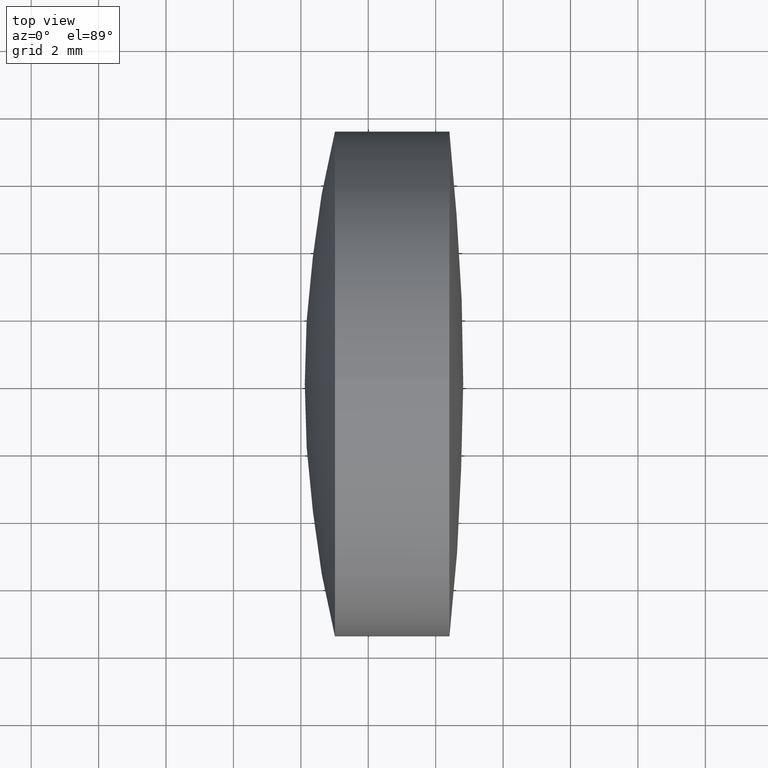
[diagram: clean part render]
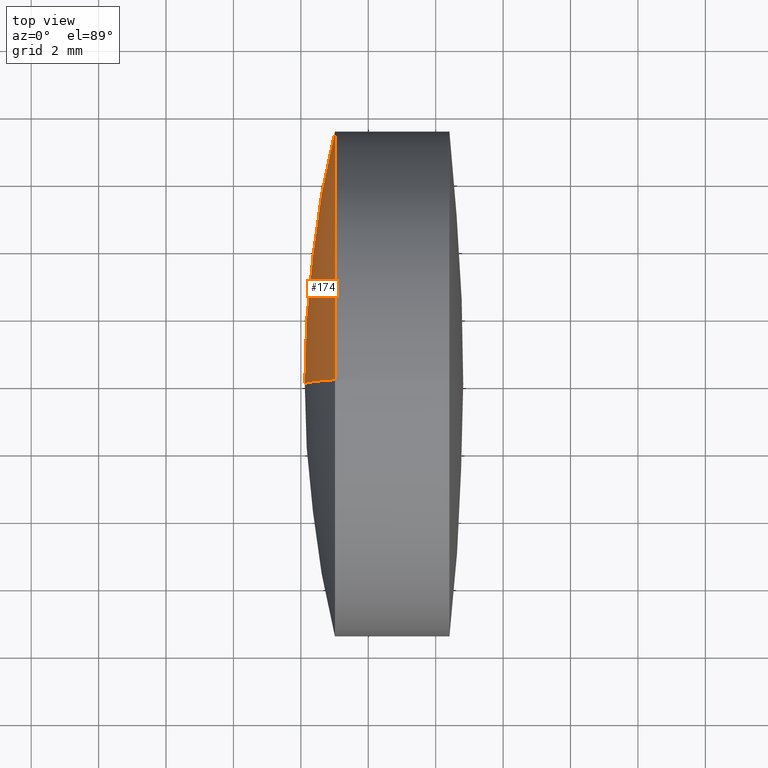
[diagram: same view with one face highlighted and labeled with its STEP entity id]
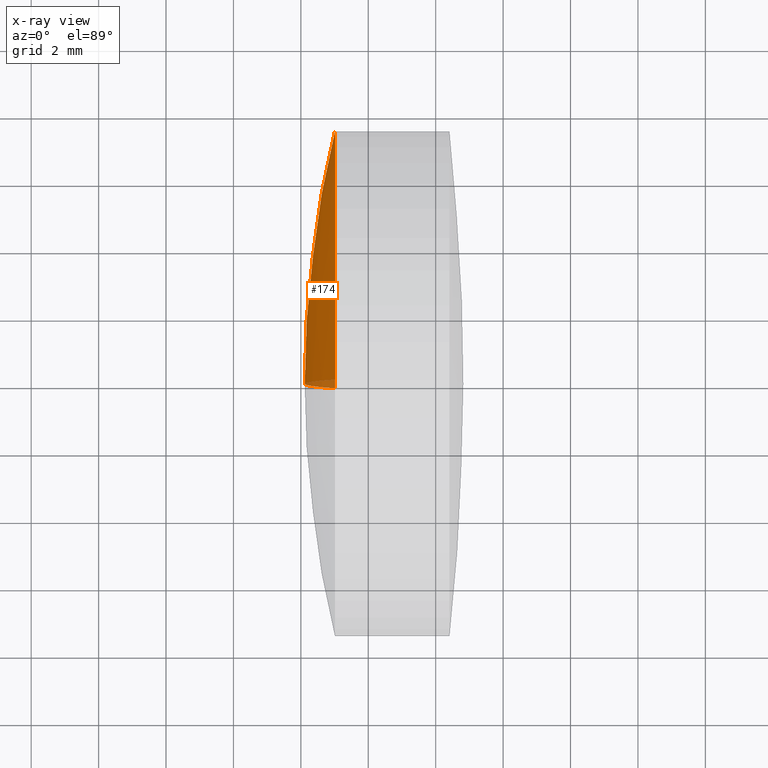
[diagram: x-ray of the same camera — body ghosted, the highlighted face saturated]
A machine part, top view. The second image highlights one B-rep face of the part: STEP entity #174.
The next image is the same camera in x-ray: the body ghosted, the highlighted face saturated — about 3% of this face is hidden behind the body in this view.
In plain terms, the highlighted spherical surface has radius 31.888 mm.
Its self-contained STEP definition (entity closure, byte-faithful):
#6 = CARTESIAN_POINT ( 'NONE',  ( 13.01076923225601200, 0.0000000000000000000, -7.500000000000007100 ) ) ;
#8 = CARTESIAN_POINT ( 'NONE',  ( 44.00422892942437900, 0.0000000000000000000, 2.710505431212750000E-017 ) ) ;
#16 = DIRECTION ( 'NONE',  ( -1.000000000000000000, -0.0000000000000000000, -0.0000000000000000000 ) ) ;
#18 = EDGE_CURVE ( 'NONE', #159, #134, #24, .T. ) ;
#24 = CIRCLE ( 'NONE', #295, 7.500000000000000000 ) ;
#27 = AXIS2_PLACEMENT_3D ( 'NONE', #320, #286, #225 ) ;
#36 = EDGE_CURVE ( 'NONE', #134, #109, #296, .T. ) ;
#39 = DIRECTION ( 'NONE',  ( 0.0000000000000000000, -1.000000000000000000, -1.224646799147353200E-016 ) ) ;
#56 = ORIENTED_EDGE ( 'NONE', *, *, #36, .T. ) ;
#92 = DIRECTION ( 'NONE',  ( -0.0000000000000000000, -1.000000000000000000, -0.0000000000000000000 ) ) ;
#94 = CARTESIAN_POINT ( 'NONE',  ( 13.01076923225601300, 0.0000000000000000000, 0.0000000000000000000 ) ) ;
#106 = EDGE_LOOP ( 'NONE', ( #128, #147, #56 ) ) ;
#109 = VERTEX_POINT ( 'NONE', #167 ) ;
#128 = ORIENTED_EDGE ( 'NONE', *, *, #226, .F. ) ;
#131 = CIRCLE ( 'NONE', #264, 31.88799999999999800 ) ;
#134 = VERTEX_POINT ( 'NONE', #6 ) ;
#142 = CARTESIAN_POINT ( 'NONE',  ( 13.01076923225601200, -9.184850993605155800E-016, 7.500000000000007100 ) ) ;
#147 = ORIENTED_EDGE ( 'NONE', *, *, #18, .T. ) ;
#159 = VERTEX_POINT ( 'NONE', #142 ) ;
#167 = CARTESIAN_POINT ( 'NONE',  ( 12.11622892942437700, 0.0000000000000000000, -1.925471802248412300E-015 ) ) ;
#174 = ADVANCED_FACE ( 'NONE', ( #209 ), #310, .T. ) ;
#209 = FACE_OUTER_BOUND ( 'NONE', #106, .T. ) ;
#225 = DIRECTION ( 'NONE',  ( 0.0000000000000000000, 0.0000000000000000000, 1.000000000000000000 ) ) ;
#226 = EDGE_CURVE ( 'NONE', #159, #109, #131, .T. ) ;
#233 = DIRECTION ( 'NONE',  ( 0.0000000000000000000, 0.0000000000000000000, 1.000000000000000000 ) ) ;
#239 = AXIS2_PLACEMENT_3D ( 'NONE', #327, #92, #302 ) ;
#264 = AXIS2_PLACEMENT_3D ( 'NONE', #8, #39, #338 ) ;
#286 = DIRECTION ( 'NONE',  ( 0.0000000000000000000, 1.000000000000000000, -0.0000000000000000000 ) ) ;
#295 = AXIS2_PLACEMENT_3D ( 'NONE', #94, #16, #233 ) ;
#296 = CIRCLE ( 'NONE', #27, 31.88799999999999800 ) ;
#302 = DIRECTION ( 'NONE',  ( 0.0000000000000000000, 0.0000000000000000000, -1.000000000000000000 ) ) ;
#310 = SPHERICAL_SURFACE ( 'NONE', #239, 31.88799999999999800 ) ;
#320 = CARTESIAN_POINT ( 'NONE',  ( 44.00422892942437900, 0.0000000000000000000, 2.710505431212750000E-017 ) ) ;
#327 = CARTESIAN_POINT ( 'NONE',  ( 44.00422892942437900, 0.0000000000000000000, 2.710505431212750000E-017 ) ) ;
#338 = DIRECTION ( 'NONE',  ( 0.0000000000000000000, 1.224646799147353500E-016, -1.000000000000000000 ) ) ;